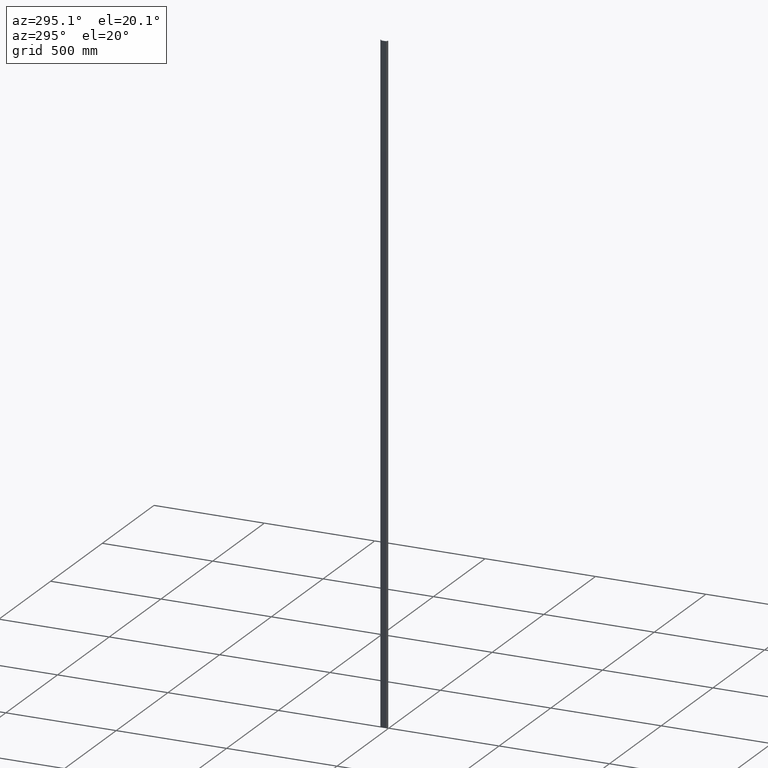
[diagram: clean part render]
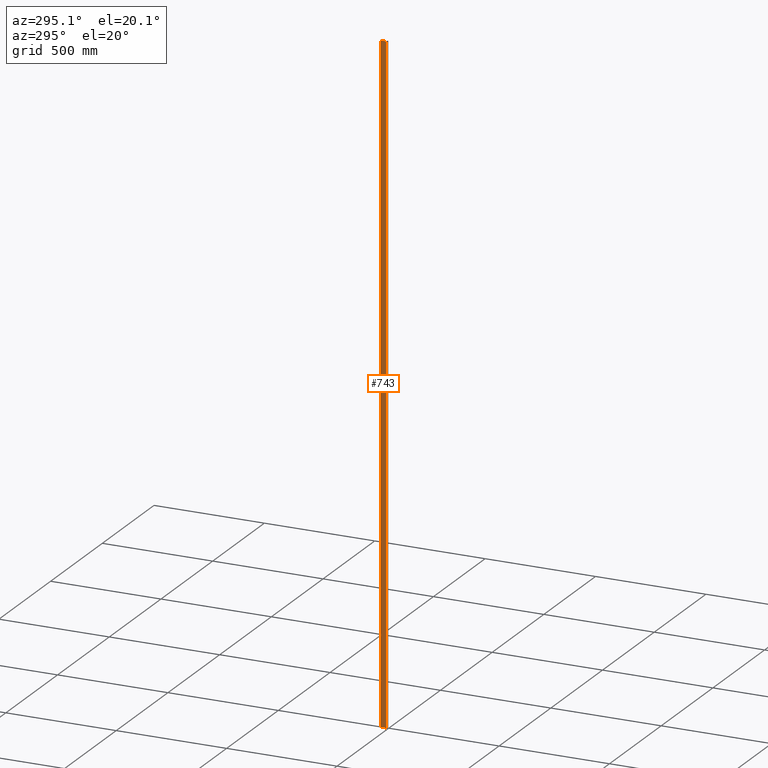
[diagram: same view with one face highlighted and labeled with its STEP entity id]
A machine part, auxiliary view. The second image highlights one B-rep face of the part: STEP entity #743.
In plain terms, the highlighted planar face has unit normal (1, 0, -0).
Its self-contained STEP definition (entity closure, byte-faithful):
#15 = CARTESIAN_POINT ( 'NONE',  ( 1384.825919215657900, 441.1357542965276400, 0.0000000000000000000 ) ) ;
#28 = LINE ( 'NONE', #15, #260 ) ;
#36 = LINE ( 'NONE', #40, #227 ) ;
#40 = CARTESIAN_POINT ( 'NONE',  ( 1384.825919215657900, 441.1357542965276400, 3000.000000000000000 ) ) ;
#43 = DIRECTION ( 'NONE',  ( 0.0000000000000000000, -1.000000000000000000, 0.0000000000000000000 ) ) ;
#50 = DIRECTION ( 'NONE',  ( 0.0000000000000000000, -1.000000000000000000, 0.0000000000000000000 ) ) ;
#57 = LINE ( 'NONE', #69, #253 ) ;
#69 = CARTESIAN_POINT ( 'NONE',  ( 1384.825919215657900, 480.9188036583253200, 3000.000000000000000 ) ) ;
#73 = DIRECTION ( 'NONE',  ( 0.0000000000000000000, 0.0000000000000000000, -1.000000000000000000 ) ) ;
#120 = CARTESIAN_POINT ( 'NONE',  ( 1384.825919215657900, 480.9188036583253200, 3000.000000000000000 ) ) ;
#128 = CARTESIAN_POINT ( 'NONE',  ( 1384.825919215657900, 480.9188036583253200, 0.0000000000000000000 ) ) ;
#139 = CARTESIAN_POINT ( 'NONE',  ( 1384.825919215657900, 457.3188036583254100, 3000.000000000000000 ) ) ;
#140 = FACE_OUTER_BOUND ( 'NONE', #693, .T. ) ;
#142 = CARTESIAN_POINT ( 'NONE',  ( 1384.825919215657900, 457.3188036583254100, 0.0000000000000000000 ) ) ;
#151 = CARTESIAN_POINT ( 'NONE',  ( 1384.825919215657900, 441.1357542965276400, 3000.000000000000000 ) ) ;
#152 = DIRECTION ( 'NONE',  ( 1.000000000000000000, 0.0000000000000000000, -0.0000000000000000000 ) ) ;
#156 = DIRECTION ( 'NONE',  ( -0.0000000000000000000, 0.0000000000000000000, -1.000000000000000000 ) ) ;
#164 = PLANE ( 'NONE',  #545 ) ;
#227 = VECTOR ( 'NONE', #50, 1000.000000000000000 ) ;
#253 = VECTOR ( 'NONE', #73, 1000.000000000000000 ) ;
#260 = VECTOR ( 'NONE', #43, 1000.000000000000000 ) ;
#435 = CARTESIAN_POINT ( 'NONE',  ( 1384.825919215657900, 457.3188036583254100, 3000.000000000000000 ) ) ;
#439 = LINE ( 'NONE', #435, #534 ) ;
#440 = DIRECTION ( 'NONE',  ( -0.0000000000000000000, -0.0000000000000000000, 1.000000000000000000 ) ) ;
#487 = EDGE_CURVE ( 'NONE', #687, #690, #28, .T. ) ;
#498 = EDGE_CURVE ( 'NONE', #724, #721, #36, .T. ) ;
#505 = EDGE_CURVE ( 'NONE', #724, #687, #57, .T. ) ;
#534 = VECTOR ( 'NONE', #440, 1000.000000000000000 ) ;
#545 = AXIS2_PLACEMENT_3D ( 'NONE', #151, #152, #156 ) ;
#628 = ORIENTED_EDGE ( 'NONE', *, *, #498, .F. ) ;
#636 = ORIENTED_EDGE ( 'NONE', *, *, #505, .T. ) ;
#649 = ORIENTED_EDGE ( 'NONE', *, *, #753, .T. ) ;
#653 = ORIENTED_EDGE ( 'NONE', *, *, #487, .T. ) ;
#687 = VERTEX_POINT ( 'NONE', #128 ) ;
#690 = VERTEX_POINT ( 'NONE', #142 ) ;
#693 = EDGE_LOOP ( 'NONE', ( #628, #636, #653, #649 ) ) ;
#721 = VERTEX_POINT ( 'NONE', #139 ) ;
#724 = VERTEX_POINT ( 'NONE', #120 ) ;
#743 = ADVANCED_FACE ( 'NONE', ( #140 ), #164, .F. ) ;
#753 = EDGE_CURVE ( 'NONE', #690, #721, #439, .T. ) ;